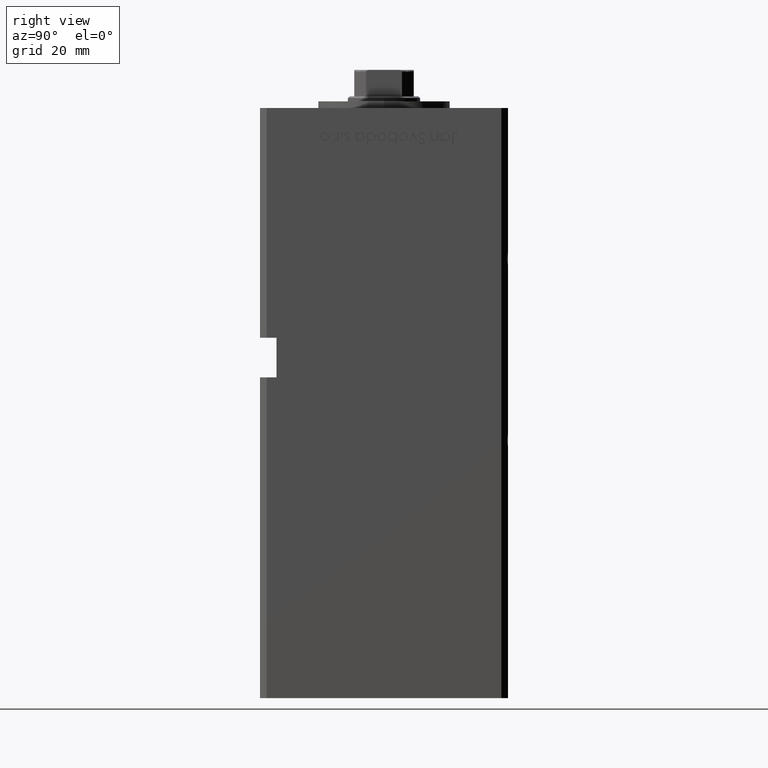
[diagram: clean part render]
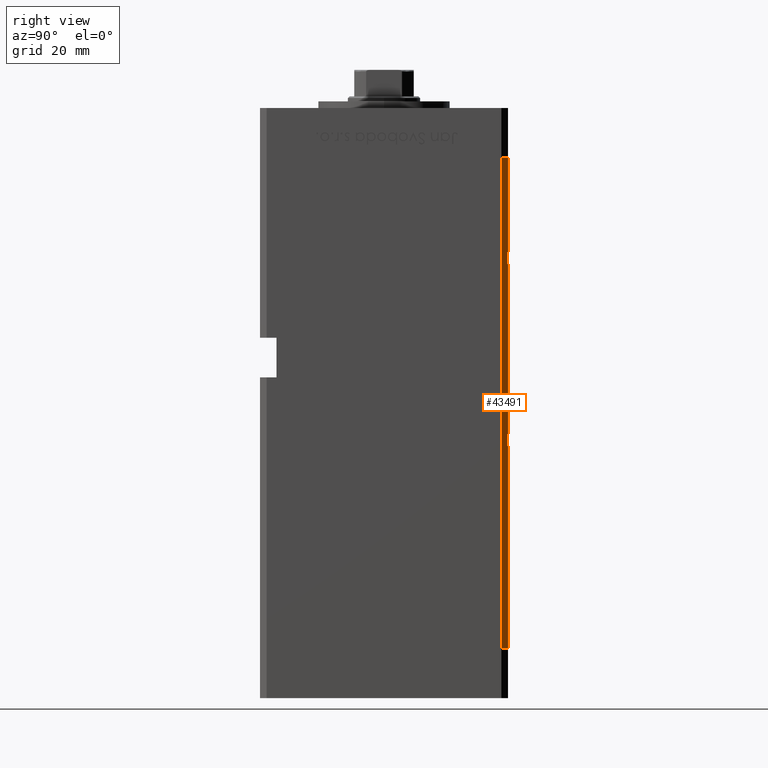
[diagram: same view with one face highlighted and labeled with its STEP entity id]
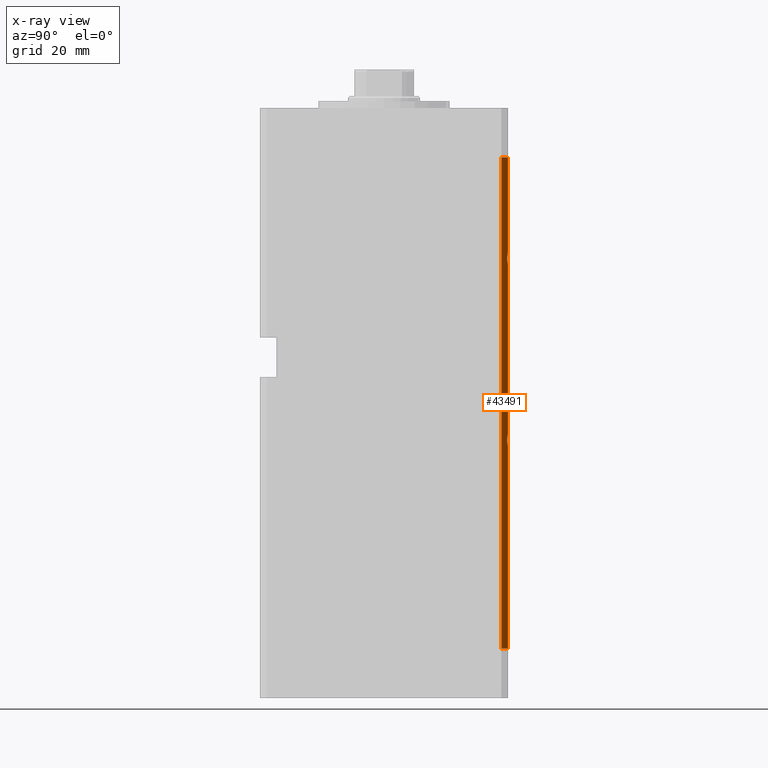
[diagram: x-ray of the same camera — body ghosted, the highlighted face saturated]
A machine part, right view. The second image highlights one B-rep face of the part: STEP entity #43491.
The next image is the same camera in x-ray: the body ghosted, the highlighted face saturated — about 0% of this face is hidden behind the body in this view.
In plain terms, the highlighted planar face has unit normal (0.7071, 0.7071, 0).
Its self-contained STEP definition (entity closure, byte-faithful):
#256 = CARTESIAN_POINT ( 'NONE',  ( 40.50000000000000711, 37.50000000000000000, 148.5000000000000000 ) ) ;
#292 = VERTEX_POINT ( 'NONE', #15720 ) ;
#511 = EDGE_CURVE ( 'NONE', #38528, #19270, #35821, .T. ) ;
#2965 = CARTESIAN_POINT ( 'NONE',  ( 40.50000000000000711, 37.50000000000000000, 115.9844355629253272 ) ) ;
#3359 = VECTOR ( 'NONE', #20598, 1000.000000000000000 ) ;
#3554 = CARTESIAN_POINT ( 'NONE',  ( 40.50000000000000711, 37.50000000000000000, 120.0155644370746586 ) ) ;
#4482 = LINE ( 'NONE', #20865, #3359 ) ;
#4494 = CARTESIAN_POINT ( 'NONE',  ( 40.50000000000000711, 37.50000000000000000, 148.5000000000000000 ) ) ;
#4623 = PLANE ( 'NONE',  #45687 ) ;
#5177 = ORIENTED_EDGE ( 'NONE', *, *, #25707, .F. ) ;
#6556 = CARTESIAN_POINT ( 'NONE',  ( 40.50000000000000711, 37.50000000000000000, 148.5000000000000000 ) ) ;
#6645 = CARTESIAN_POINT ( 'NONE',  ( 40.50000000000000711, 37.50000000000000000, 60.98443556292540535 ) ) ;
#6750 = VERTEX_POINT ( 'NONE', #29043 ) ;
#8852 =( BOUNDED_CURVE ( )  B_SPLINE_CURVE ( 3, ( #3554, #52476, #36335, #15648 ),
 .UNSPECIFIED., .F., .T. ) 
 B_SPLINE_CURVE_WITH_KNOTS ( ( 4, 4 ),
 ( 2.894783720120217119, 3.388401587059369113 ),
 .UNSPECIFIED. ) 
 CURVE ( )  GEOMETRIC_REPRESENTATION_ITEM ( )  RATIONAL_B_SPLINE_CURVE ( ( 1.000000000000000000, 0.9797979797979792238, 0.9797979797979792238, 1.000000000000000000 ) ) 
 REPRESENTATION_ITEM ( '' )  );
#9366 = DIRECTION ( 'NONE',  ( -0.000000000000000000, -0.000000000000000000, -1.000000000000000000 ) ) ;
#11449 = VERTEX_POINT ( 'NONE', #2965 ) ;
#12297 =( BOUNDED_CURVE ( )  B_SPLINE_CURVE ( 3, ( #23020, #19515, #19260, #6645 ),
 .UNSPECIFIED., .F., .F. ) 
 B_SPLINE_CURVE_WITH_KNOTS ( ( 4, 4 ),
 ( 2.894783720120225556, 3.388401587059360676 ),
 .UNSPECIFIED. ) 
 CURVE ( )  GEOMETRIC_REPRESENTATION_ITEM ( )  RATIONAL_B_SPLINE_CURVE ( ( 1.000000000000000000, 0.9797979797979806671, 0.9797979797979806671, 1.000000000000000000 ) ) 
 REPRESENTATION_ITEM ( '' )  );
#12943 = DIRECTION ( 'NONE',  ( 0.7071067811865500152, -0.7071067811865451302, 0.000000000000000000 ) ) ;
#13541 = ORIENTED_EDGE ( 'NONE', *, *, #511, .T. ) ;
#14671 = VECTOR ( 'NONE', #51703, 1000.000000000000114 ) ;
#15648 = CARTESIAN_POINT ( 'NONE',  ( 40.50000000000000711, 37.50000000000000000, 115.9844355629253272 ) ) ;
#15720 = CARTESIAN_POINT ( 'NONE',  ( 42.50000000000001421, 35.50000000000000711, 0.000000000000000000 ) ) ;
#16843 = DIRECTION ( 'NONE',  ( -0.000000000000000000, -0.000000000000000000, -1.000000000000000000 ) ) ;
#16967 = CARTESIAN_POINT ( 'NONE',  ( 40.50000000000000711, 37.50000000000000000, 148.5000000000000000 ) ) ;
#17021 = EDGE_CURVE ( 'NONE', #26693, #11449, #8852, .T. ) ;
#17492 = EDGE_CURVE ( 'NONE', #33361, #292, #32063, .T. ) ;
#19260 = CARTESIAN_POINT ( 'NONE',  ( 40.83505154639174606, 37.16494845360825394, 62.31429251109832990 ) ) ;
#19270 = VERTEX_POINT ( 'NONE', #40510 ) ;
#19515 = CARTESIAN_POINT ( 'NONE',  ( 40.83505154639174606, 37.16494845360826105, 63.68570748890166300 ) ) ;
#19587 = VERTEX_POINT ( 'NONE', #21537 ) ;
#19858 = VECTOR ( 'NONE', #9366, 1000.000000000000000 ) ;
#20598 = DIRECTION ( 'NONE',  ( -0.000000000000000000, -0.000000000000000000, -1.000000000000000000 ) ) ;
#20714 = ORIENTED_EDGE ( 'NONE', *, *, #36435, .T. ) ;
#20733 = DIRECTION ( 'NONE',  ( -0.7071067811865500152, 0.7071067811865451302, 0.000000000000000000 ) ) ;
#20865 = CARTESIAN_POINT ( 'NONE',  ( 40.50000000000000711, 37.50000000000000000, 148.5000000000000000 ) ) ;
#20998 = DIRECTION ( 'NONE',  ( 0.7071067811865451302, 0.7071067811865500152, -0.000000000000000000 ) ) ;
#21537 = CARTESIAN_POINT ( 'NONE',  ( 40.50000000000000711, 37.50000000000000000, 65.01556443707460176 ) ) ;
#22333 = ORIENTED_EDGE ( 'NONE', *, *, #17492, .F. ) ;
#23020 = CARTESIAN_POINT ( 'NONE',  ( 40.50000000000000711, 37.50000000000000000, 65.01556443707460176 ) ) ;
#24971 = DIRECTION ( 'NONE',  ( -0.000000000000000000, -0.000000000000000000, -1.000000000000000000 ) ) ;
#25707 = EDGE_CURVE ( 'NONE', #6750, #33361, #4482, .T. ) ;
#26384 = CARTESIAN_POINT ( 'NONE',  ( 40.50000000000000711, 37.50000000000000000, 120.0155644370746586 ) ) ;
#26693 = VERTEX_POINT ( 'NONE', #26384 ) ;
#27293 = ORIENTED_EDGE ( 'NONE', *, *, #44217, .F. ) ;
#29043 = CARTESIAN_POINT ( 'NONE',  ( 40.50000000000000711, 37.50000000000000000, 60.98443556292540535 ) ) ;
#29420 = VECTOR ( 'NONE', #16843, 1000.000000000000000 ) ;
#32063 = LINE ( 'NONE', #37137, #52800 ) ;
#33361 = VERTEX_POINT ( 'NONE', #49355 ) ;
#34090 = CARTESIAN_POINT ( 'NONE',  ( 42.50000000000001421, 35.50000000000000711, 148.5000000000000000 ) ) ;
#35821 = LINE ( 'NONE', #6556, #14671 ) ;
#36335 = CARTESIAN_POINT ( 'NONE',  ( 40.83505154639176737, 37.16494845360823973, 117.3142925110983015 ) ) ;
#36435 = EDGE_CURVE ( 'NONE', #19270, #292, #45662, .T. ) ;
#37063 = LINE ( 'NONE', #256, #43357 ) ;
#37137 = CARTESIAN_POINT ( 'NONE',  ( 40.50000000000000711, 37.50000000000000000, 0.000000000000000000 ) ) ;
#38528 = VERTEX_POINT ( 'NONE', #48555 ) ;
#40510 = CARTESIAN_POINT ( 'NONE',  ( 42.50000000000001421, 35.50000000000000711, 148.5000000000000000 ) ) ;
#42669 = ORIENTED_EDGE ( 'NONE', *, *, #51459, .F. ) ;
#43357 = VECTOR ( 'NONE', #24971, 1000.000000000000000 ) ;
#43491 = ADVANCED_FACE ( 'NONE', ( #49517 ), #4623, .T. ) ;
#44217 = EDGE_CURVE ( 'NONE', #38528, #26693, #49389, .T. ) ;
#44793 = ORIENTED_EDGE ( 'NONE', *, *, #17021, .F. ) ;
#45446 = EDGE_LOOP ( 'NONE', ( #47611, #42669, #44793, #27293, #13541, #20714, #22333, #5177 ) ) ;
#45662 = LINE ( 'NONE', #34090, #19858 ) ;
#45687 = AXIS2_PLACEMENT_3D ( 'NONE', #16967, #20998, #20733 ) ;
#47012 = EDGE_CURVE ( 'NONE', #19587, #6750, #12297, .T. ) ;
#47611 = ORIENTED_EDGE ( 'NONE', *, *, #47012, .F. ) ;
#48555 = CARTESIAN_POINT ( 'NONE',  ( 40.50000000000000711, 37.50000000000000000, 148.5000000000000000 ) ) ;
#49355 = CARTESIAN_POINT ( 'NONE',  ( 40.50000000000000711, 37.50000000000000000, 0.000000000000000000 ) ) ;
#49389 = LINE ( 'NONE', #4494, #29420 ) ;
#49517 = FACE_OUTER_BOUND ( 'NONE', #45446, .T. ) ;
#51459 = EDGE_CURVE ( 'NONE', #11449, #19587, #37063, .T. ) ;
#51703 = DIRECTION ( 'NONE',  ( 0.7071067811865500152, -0.7071067811865451302, 0.000000000000000000 ) ) ;
#52476 = CARTESIAN_POINT ( 'NONE',  ( 40.83505154639176737, 37.16494845360823973, 118.6857074889016843 ) ) ;
#52800 = VECTOR ( 'NONE', #12943, 1000.000000000000114 ) ;